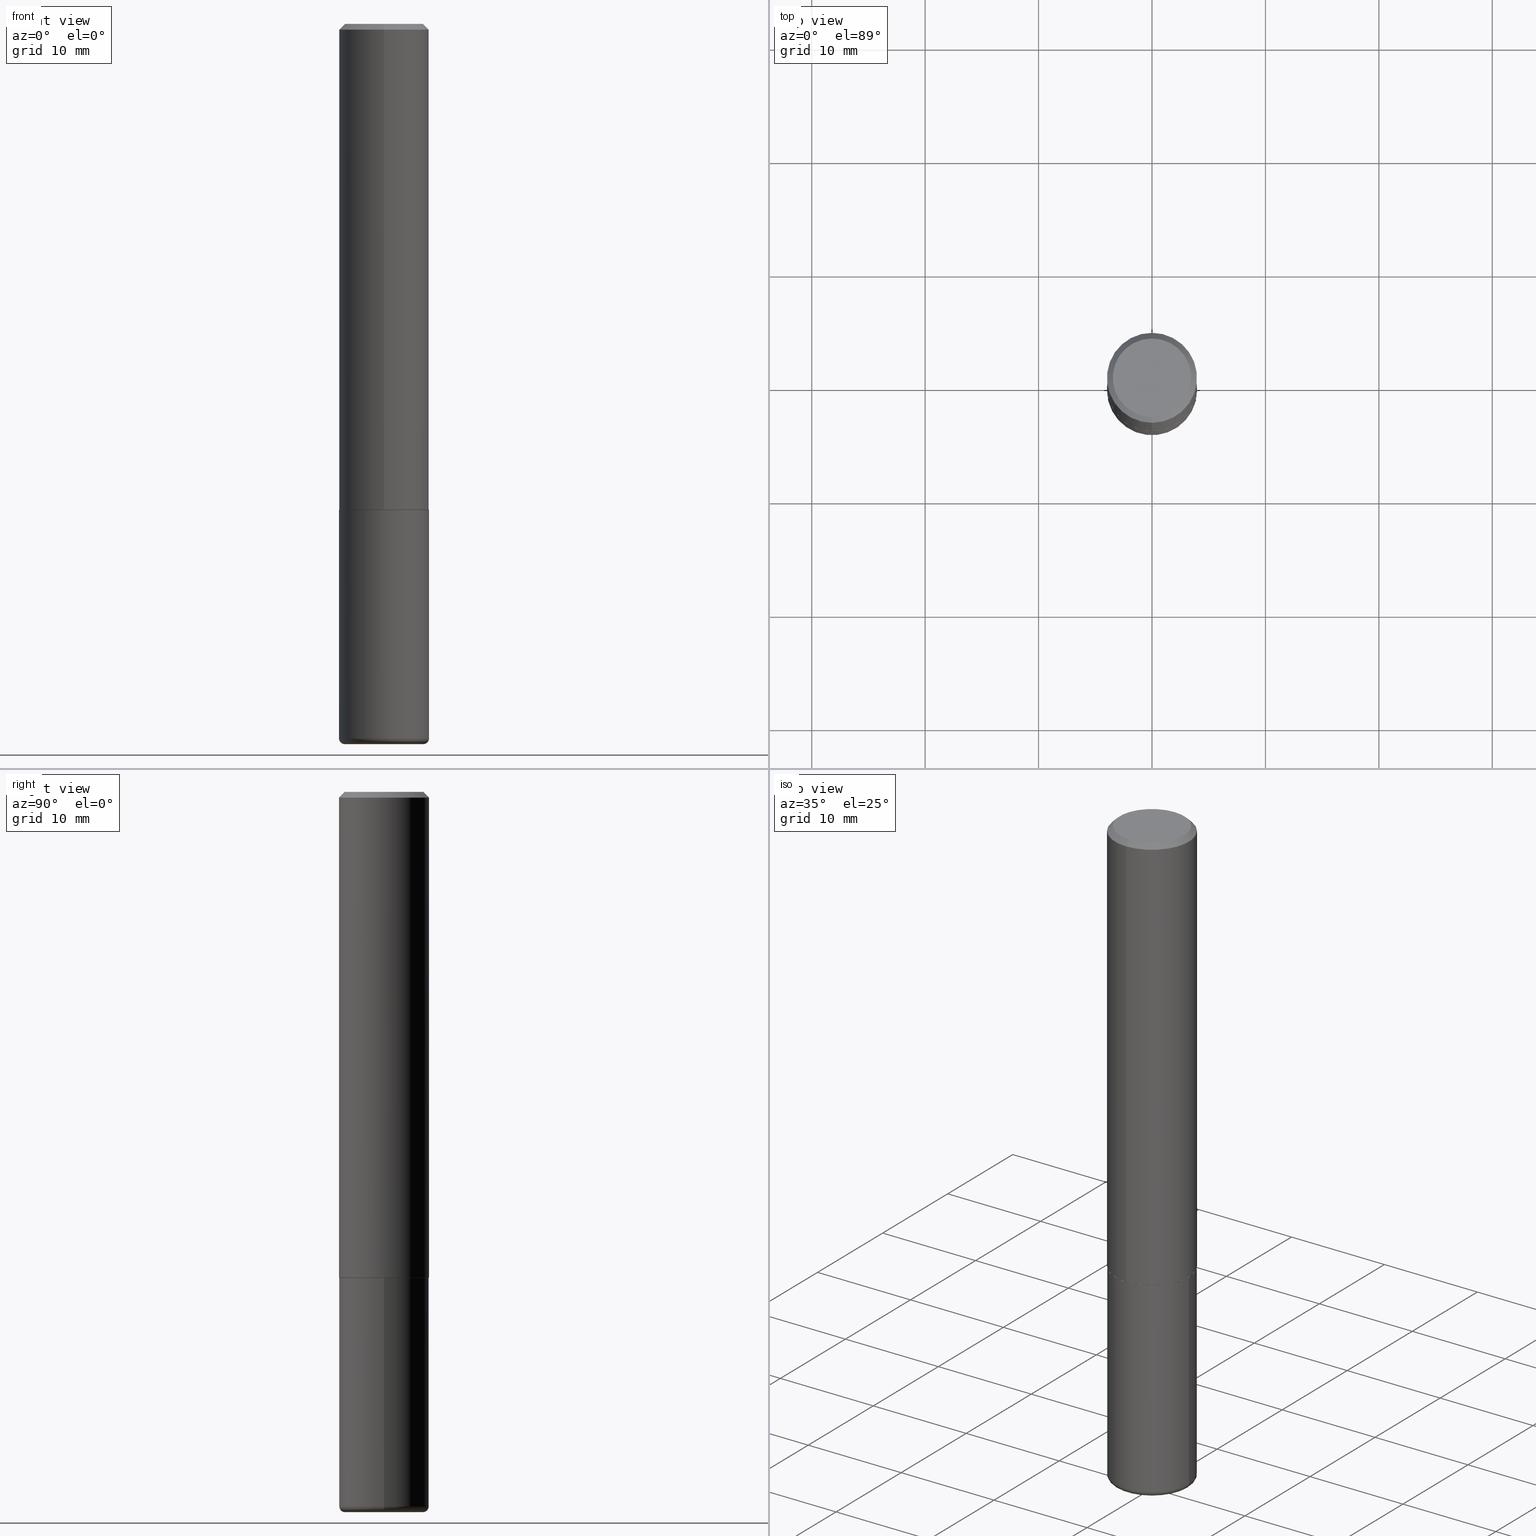
[diagram: canonical four-view strip — front | top / right | iso, engineering-drawing reading convention]
A machine part, canonical four-view strip (front | top / right | iso — engineering-drawing reading convention). The complete STEP part file that produces these views, byte-faithful:
ISO-10303-21;
HEADER;
FILE_DESCRIPTION (( 'STEP AP203' ),
    '1' );
FILE_NAME ('36855.STEP',
    '2024-03-01T18:15:22',
    ( '' ),
    ( '' ),
    'SwSTEP 2.0',
    'SolidWorks 2023',
    '' );
FILE_SCHEMA (( 'CONFIG_CONTROL_DESIGN' ));
ENDSEC;

DATA;
#1 = LINE ( 'NONE', #257, #294 ) ;
#2 = AXIS2_PLACEMENT_3D ( 'NONE', #21, #313, #345 ) ;
#3 = CARTESIAN_POINT ( 'NONE',  ( -1.091087918388479962E-15, -0.1562500000000001388, 5.454617528603499581E-16 ) ) ;
#4 = DESIGN_CONTEXT ( 'detailed design', #192, 'design' ) ;
#5 = DIRECTION ( 'NONE',  ( -2.445836194192456800E-29, 3.490955218306236261E-15, 1.000000000000000000 ) ) ;
#6 = CARTESIAN_POINT ( 'NONE',  ( 0.000000000000000000, 0.000000000000000000, 0.000000000000000000 ) ) ;
#7 = CONICAL_SURFACE ( 'NONE', #198, 0.1562500000000000278, 0.7853981633974469467 ) ;
#8 = AXIS2_PLACEMENT_3D ( 'NONE', #120, #58, #180 ) ;
#9 = PERSON_AND_ORGANIZATION ( #64, #411 ) ;
#10 = EDGE_CURVE ( 'NONE', #87, #81, #26, .T. ) ;
#11 = APPROVAL_STATUS ( 'not_yet_approved' ) ;
#12 = ORIENTED_EDGE ( 'NONE', *, *, #222, .T. ) ;
#13 = EDGE_CURVE ( 'NONE', #15, #310, #206, .T. ) ;
#14 = COORDINATED_UNIVERSAL_TIME_OFFSET ( 5, 0, .BEHIND. ) ;
#15 = VERTEX_POINT ( 'NONE', #154 ) ;
#16 = VECTOR ( 'NONE', #285, 39.37007874015748143 ) ;
#17 = COORDINATED_UNIVERSAL_TIME_OFFSET ( 5, 0, .BEHIND. ) ;
#18 = VERTEX_POINT ( 'NONE', #246 ) ;
#19 = PERSON_AND_ORGANIZATION ( #64, #411 ) ;
#20 = ORIENTED_EDGE ( 'NONE', *, *, #402, .T. ) ;
#21 = CARTESIAN_POINT ( 'NONE',  ( 6.113672015462842613E-29, -8.728703347107864943E-15, -2.500000000000000000 ) ) ;
#22 = ADVANCED_FACE ( 'NONE', ( #65 ), #7, .T. ) ;
#23 = ORIENTED_EDGE ( 'NONE', *, *, #276, .F. ) ;
#24 = LOCAL_TIME ( 13, 15, 22.00000000000000000, #86 ) ;
#25 = DIRECTION ( 'NONE',  ( 1.000000000000000000, -6.982962677686269077E-15, 0.000000000000000000 ) ) ;
#26 = LINE ( 'NONE', #278, #74 ) ;
#27 = CARTESIAN_POINT ( 'NONE',  ( 0.1562500000000000000, -6.981216937016868084E-15, -1.687000000000000277 ) ) ;
#28 = CYLINDRICAL_SURFACE ( 'NONE', #40, 0.1562500000000000000 ) ;
#29 = DIRECTION ( 'NONE',  ( -2.445836194192456800E-29, 3.490955218306235866E-15, 1.000000000000000000 ) ) ;
#30 = CARTESIAN_POINT ( 'NONE',  ( 4.891672388384922358E-31, -6.981910436612484108E-17, -0.02000000000000003511 ) ) ;
#31 = VECTOR ( 'NONE', #211, 39.37007874015748143 ) ;
#32 = DIRECTION ( 'NONE',  ( -6.982962677686265922E-15, -1.000000000000000000, 3.496765431890251792E-15 ) ) ;
#33 = PRODUCT_DEFINITION_FORMATION_WITH_SPECIFIED_SOURCE ( 'ANY', '', #353, .NOT_KNOWN. ) ;
#34 = CARTESIAN_POINT ( 'NONE',  ( -1.084104955710751547E-15, -0.1552500000000058833, -1.686999999999999833 ) ) ;
#35 = PERSON_AND_ORGANIZATION_ROLE ( 'design_owner' ) ;
#36 = PRODUCT_RELATED_PRODUCT_CATEGORY ( 'detail', '', ( #353 ) ) ;
#37 = DIRECTION ( 'NONE',  ( -6.982962677686267499E-15, -1.000000000000000000, 3.490955218306237444E-15 ) ) ;
#38 = PRODUCT_DEFINITION_SHAPE ( 'NONE', 'NONE',  #304 ) ;
#39 = APPLICATION_PROTOCOL_DEFINITION ( 'international standard', 'config_control_design', 1994, #192 ) ;
#40 = AXIS2_PLACEMENT_3D ( 'NONE', #119, #127, #251 ) ;
#41 = DIRECTION ( 'NONE',  ( 1.000000000000000000, -6.982962677686266711E-15, 4.876176775795936353E-29 ) ) ;
#42 = PERSON_AND_ORGANIZATION ( #64, #411 ) ;
#43 = ADVANCED_FACE ( 'NONE', ( #146 ), #95, .T. ) ;
#44 = PERSON_AND_ORGANIZATION ( #64, #411 ) ;
#45 = CIRCLE ( 'NONE', #259, 0.1362500000000000100 ) ;
#46 = APPROVAL_STATUS ( 'not_yet_approved' ) ;
#47 = CC_DESIGN_DATE_AND_TIME_ASSIGNMENT ( #189, #49, ( #304 ) ) ;
#48 = EDGE_LOOP ( 'NONE', ( #351, #332, #299, #308 ) ) ;
#49 = DATE_TIME_ROLE ( 'creation_date' ) ;
#50 = ORIENTED_EDGE ( 'NONE', *, *, #269, .T. ) ;
#51 = ORIENTED_EDGE ( 'NONE', *, *, #10, .F. ) ;
#52 = ORIENTED_EDGE ( 'NONE', *, *, #222, .F. ) ;
#53 = CARTESIAN_POINT ( 'NONE',  ( 1.091087918388479765E-15, 0.1562499999999999722, -0.02000000000000057981 ) ) ;
#54 = EDGE_LOOP ( 'NONE', ( #236, #109, #208, #51 ) ) ;
#55 = CARTESIAN_POINT ( 'NONE',  ( 4.125505876034326327E-29, -5.890129018628388122E-15, -1.687000000000000277 ) ) ;
#56 = DIRECTION ( 'NONE',  ( 7.105427357601001859E-15, 1.000000000000000000, -3.491481338843145583E-15 ) ) ;
#57 = AXIS2_PLACEMENT_3D ( 'NONE', #227, #105, #382 ) ;
#58 = DIRECTION ( 'NONE',  ( -2.445836194192456800E-29, 3.490955218306236261E-15, 1.000000000000000000 ) ) ;
#59 = VERTEX_POINT ( 'NONE', #282 ) ;
#60 = MANIFOLD_SOLID_BREP ( 'Body-Move/Copy2[2]', #284 ) ;
#61 = LINE ( 'NONE', #339, #16 ) ;
#62 = DIRECTION ( 'NONE',  ( -2.445836194192456800E-29, 3.490955218306236261E-15, 1.000000000000000000 ) ) ;
#63 = CARTESIAN_POINT ( 'NONE',  ( 0.1562500000000000000, -1.091087918388479174E-15, 7.619026212181150377E-30 ) ) ;
#64 = PERSON ( 'UNSPECIFIED', 'UNSPECIFIED', 'UNSPECIFIED', ('UNSPECIFIED'), ('UNSPECIFIED'), ('UNSPECIFIED') ) ;
#65 = FACE_OUTER_BOUND ( 'NONE', #297, .T. ) ;
#66 = EDGE_CURVE ( 'NONE', #267, #87, #156, .T. ) ;
#67 = APPROVAL_PERSON_ORGANIZATION ( #291, #254, #104 ) ;
#68 = DIRECTION ( 'NONE',  ( 0.000000000000000000, 0.000000000000000000, 1.000000000000000000 ) ) ;
#69 = EDGE_LOOP ( 'NONE', ( #52, #336 ) ) ;
#70 = DIRECTION ( 'NONE',  ( -4.851104656540957175E-15, -0.7071067811865490160, -0.7071067811865460184 ) ) ;
#71 = EDGE_CURVE ( 'NONE', #174, #59, #302, .T. ) ;
#72 = APPLICATION_PROTOCOL_DEFINITION ( 'international standard', 'config_control_design', 1994, #217 ) ;
#73 = FACE_OUTER_BOUND ( 'NONE', #232, .T. ) ;
#74 = VECTOR ( 'NONE', #186, 39.37007874015748143 ) ;
#75 = ADVANCED_FACE ( 'NONE', ( #188 ), #173, .T. ) ;
#76 = PERSON_AND_ORGANIZATION_ROLE ( 'creator' ) ;
#77 = EDGE_CURVE ( 'NONE', #183, #59, #358, .T. ) ;
#78 = PLANE ( 'NONE',  #191 ) ;
#79 = CONICAL_SURFACE ( 'NONE', #148, 0.1552499999999999991, 0.7853981633975165577 ) ;
#81 = VERTEX_POINT ( 'NONE', #413 ) ;
#80 = CC_DESIGN_APPROVAL ( #360, ( #33 ) ) ;
#82 = CARTESIAN_POINT ( 'NONE',  ( 0.1362500000000000100, -9.680132011942619886E-15, -2.500000000000000000 ) ) ;
#83 = ORIENTED_EDGE ( 'NONE', *, *, #418, .F. ) ;
#84 = ORIENTED_EDGE ( 'NONE', *, *, #402, .F. ) ;
#85 = ADVANCED_FACE ( 'NONE', ( #344 ), #28, .T. ) ;
#86 = COORDINATED_UNIVERSAL_TIME_OFFSET ( 5, 0, .BEHIND. ) ;
#87 = VERTEX_POINT ( 'NONE', #34 ) ;
#88 = AXIS2_PLACEMENT_3D ( 'NONE', #175, #29, #252 ) ;
#89 = CARTESIAN_POINT ( 'NONE',  ( 6.113672015462842613E-29, -8.728703347107864943E-15, -2.500000000000000000 ) ) ;
#90 = ORIENTED_EDGE ( 'NONE', *, *, #13, .F. ) ;
#91 = DIRECTION ( 'NONE',  ( 1.000000000000000000, -6.982962677686269077E-15, 0.000000000000000000 ) ) ;
#92 = DIRECTION ( 'NONE',  ( -2.445836194192456800E-29, 3.490955218306236261E-15, 1.000000000000000000 ) ) ;
#93 = DIRECTION ( 'NONE',  ( -2.445836194192456800E-29, 3.490955218306236261E-15, 1.000000000000000000 ) ) ;
#94 = EDGE_CURVE ( 'NONE', #87, #267, #103, .T. ) ;
#95 = PLANE ( 'NONE',  #350 ) ;
#96 = AXIS2_PLACEMENT_3D ( 'NONE', #405, #56, #98 ) ;
#97 = LINE ( 'NONE', #63, #320 ) ;
#98 = DIRECTION ( 'NONE',  ( -1.000000000000000000, 7.105427357601014480E-15, 0.000000000000000000 ) ) ;
#99 = CARTESIAN_POINT ( 'NONE',  ( 1.103117597267596553E-15, 0.1552499999999941427, -1.687000000000000943 ) ) ;
#100 = DIRECTION ( 'NONE',  ( -2.445836194192456800E-29, 3.490955218306236261E-15, 1.000000000000000000 ) ) ;
#101 = DIRECTION ( 'NONE',  ( -2.445468806185136597E-29, 3.491481338843145583E-15, 1.000000000000000000 ) ) ;
#102 = EDGE_CURVE ( 'NONE', #141, #174, #266, .T. ) ;
#103 = CIRCLE ( 'NONE', #155, 0.1552499999999999991 ) ;
#104 = APPROVAL_ROLE ( '' ) ;
#105 = DIRECTION ( 'NONE',  ( -2.445836194192456800E-29, 3.490955218306236261E-15, 1.000000000000000000 ) ) ;
#106 = AXIS2_PLACEMENT_3D ( 'NONE', #383, #101, #196 ) ;
#107 = CC_DESIGN_SECURITY_CLASSIFICATION ( #248, ( #33 ) ) ;
#108 = AXIS2_PLACEMENT_3D ( 'NONE', #212, #121, #152 ) ;
#109 = ORIENTED_EDGE ( 'NONE', *, *, #321, .T. ) ;
#110 = EDGE_CURVE ( 'NONE', #59, #174, #131, .T. ) ;
#111 = DIRECTION ( 'NONE',  ( 6.982962677686265922E-15, 1.000000000000000000, -3.490955218306235866E-15 ) ) ;
#112 = AXIS2_PLACEMENT_3D ( 'NONE', #149, #145, #126 ) ;
#113 = ORIENTED_EDGE ( 'NONE', *, *, #239, .F. ) ;
#114 = ORIENTED_EDGE ( 'NONE', *, *, #355, .F. ) ;
#115 = ORIENTED_EDGE ( 'NONE', *, *, #66, .F. ) ;
#116 = ORIENTED_EDGE ( 'NONE', *, *, #77, .T. ) ;
#117 = AXIS2_PLACEMENT_3D ( 'NONE', #157, #287, #124 ) ;
#118 = DIRECTION ( 'NONE',  ( -2.445468806185136597E-29, 3.491481338843145583E-15, 1.000000000000000000 ) ) ;
#119 = CARTESIAN_POINT ( 'NONE',  ( 0.000000000000000000, 0.000000000000000000, 0.000000000000000000 ) ) ;
#120 = CARTESIAN_POINT ( 'NONE',  ( 0.000000000000000000, 0.000000000000000000, 0.000000000000000000 ) ) ;
#121 = DIRECTION ( 'NONE',  ( -2.445468806185136597E-29, 3.491481338843145583E-15, 1.000000000000000000 ) ) ;
#122 = ADVANCED_FACE ( 'NONE', ( #416 ), #352, .T. ) ;
#123 = CARTESIAN_POINT ( 'NONE',  ( 1.110223024625178431E-15, 0.1562499999999943379, -1.686000000000000831 ) ) ;
#124 = DIRECTION ( 'NONE',  ( 1.000000000000000000, -6.982962677686262766E-15, 0.000000000000000000 ) ) ;
#125 = CIRCLE ( 'NONE', #57, 0.1562500000000000278 ) ;
#126 = DIRECTION ( 'NONE',  ( -6.982962677686265922E-15, -1.000000000000000000, 3.490955218306236655E-15 ) ) ;
#127 = DIRECTION ( 'NONE',  ( -2.445468806185136597E-29, 3.491481338843145583E-15, 1.000000000000000000 ) ) ;
#128 = FACE_OUTER_BOUND ( 'NONE', #271, .T. ) ;
#129 = DIRECTION ( 'NONE',  ( -2.445836194192457080E-29, 3.490955218306235866E-15, 1.000000000000000000 ) ) ;
#130 = DIRECTION ( 'NONE',  ( -2.445468806185136597E-29, 3.491481338843145583E-15, 1.000000000000000000 ) ) ;
#131 = CIRCLE ( 'NONE', #117, 0.1562500000000000000 ) ;
#132 = DIRECTION ( 'NONE',  ( -6.982962677686265922E-15, -1.000000000000000000, 3.496765431890251792E-15 ) ) ;
#133 = APPROVAL_DATE_TIME ( #255, #254 ) ;
#134 = CARTESIAN_POINT ( 'NONE',  ( 4.891672388384922358E-31, -6.981910436612484108E-17, -0.02000000000000003511 ) ) ;
#135 = LOCAL_TIME ( 13, 15, 22.00000000000000000, #17 ) ;
#136 = ORIENTED_EDGE ( 'NONE', *, *, #102, .F. ) ;
#137 = ADVANCED_FACE ( 'NONE', ( #253 ), #393, .T. ) ;
#138 = CALENDAR_DATE ( 2024, 1, 3 ) ;
#139 = ORIENTED_EDGE ( 'NONE', *, *, #184, .F. ) ;
#140 = AXIS2_PLACEMENT_3D ( 'NONE', #218, #275, #341 ) ;
#141 = VERTEX_POINT ( 'NONE', #301 ) ;
#142 = CC_DESIGN_PERSON_AND_ORGANIZATION_ASSIGNMENT ( #327, #76, ( #33 ) ) ;
#143 = ORIENTED_EDGE ( 'NONE', *, *, #234, .T. ) ;
#144 = VERTEX_POINT ( 'NONE', #261 ) ;
#145 = DIRECTION ( 'NONE',  ( -2.445836194192456800E-29, 3.490955218306236261E-15, 1.000000000000000000 ) ) ;
#146 = FACE_OUTER_BOUND ( 'NONE', #69, .T. ) ;
#147 = CC_DESIGN_DATE_AND_TIME_ASSIGNMENT ( #265, #171, ( #248 ) ) ;
#148 = AXIS2_PLACEMENT_3D ( 'NONE', #356, #162, #164 ) ;
#149 = CARTESIAN_POINT ( 'NONE',  ( 0.000000000000000000, 0.000000000000000000, 0.000000000000000000 ) ) ;
#150 = DIRECTION ( 'NONE',  ( -6.982962677686267499E-15, -1.000000000000000000, 3.490955218306237444E-15 ) ) ;
#151 = DIRECTION ( 'NONE',  ( 5.024295867788404755E-15, 0.7071067811865981989, 0.7071067811864968355 ) ) ;
#152 = DIRECTION ( 'NONE',  ( 1.000000000000000000, -6.982962677686262766E-15, 0.000000000000000000 ) ) ;
#153 = CARTESIAN_POINT ( 'NONE',  ( 1.106670310946397846E-15, 0.1552499999999941427, -1.687000000000000943 ) ) ;
#154 = CARTESIAN_POINT ( 'NONE',  ( -1.003347832174086870E-15, -0.1362500000000001765, 3.517841023581594269E-16 ) ) ;
#155 = AXIS2_PLACEMENT_3D ( 'NONE', #380, #410, #221 ) ;
#156 = CIRCLE ( 'NONE', #249, 0.1552499999999999991 ) ;
#157 = CARTESIAN_POINT ( 'NONE',  ( 6.064762639339139522E-29, -8.658873720331001644E-15, -2.480000000000000426 ) ) ;
#158 = APPROVAL_STATUS ( 'not_yet_approved' ) ;
#159 = CARTESIAN_POINT ( 'NONE',  ( 3.029377150996461054E-45, -4.323846379655227478E-31, -1.238585461360658504E-16 ) ) ;
#160 = CARTESIAN_POINT ( 'NONE',  ( 0.000000000000000000, 0.000000000000000000, 0.000000000000000000 ) ) ;
#161 = LOCAL_TIME ( 13, 15, 22.00000000000000000, #14 ) ;
#162 = DIRECTION ( 'NONE',  ( -2.445836194192456800E-29, 3.490955218306236261E-15, 1.000000000000000000 ) ) ;
#163 = CALENDAR_DATE ( 2024, 1, 3 ) ;
#164 = DIRECTION ( 'NONE',  ( -6.982962677686265922E-15, -1.000000000000000000, 3.519288880726909138E-15 ) ) ;
#165 = CIRCLE ( 'NONE', #368, 0.1562500000000000278 ) ;
#166 = ADVANCED_FACE ( 'NONE', ( #231 ), #78, .F. ) ;
#167 = CARTESIAN_POINT ( 'NONE',  ( 9.514286648347551409E-16, 0.1362500000000001765, -5.375719215622581901E-16 ) ) ;
#168 = EDGE_LOOP ( 'NONE', ( #136, #50, #116, #238 ) ) ;
#169 = ORIENTED_EDGE ( 'NONE', *, *, #110, .F. ) ;
#170 = CC_DESIGN_PERSON_AND_ORGANIZATION_ASSIGNMENT ( #42, #417, ( #304 ) ) ;
#171 = DATE_TIME_ROLE ( 'classification_date' ) ;
#172 = ORIENTED_EDGE ( 'NONE', *, *, #234, .F. ) ;
#173 = CONICAL_SURFACE ( 'NONE', #414, 0.1552499999999999991, 0.7853981633975165577 ) ;
#174 = VERTEX_POINT ( 'NONE', #364 ) ;
#175 = CARTESIAN_POINT ( 'NONE',  ( 4.126125659602675903E-29, -5.889241453282622158E-15, -1.687000000000000277 ) ) ;
#176 = ORIENTED_EDGE ( 'NONE', *, *, #13, .T. ) ;
#177 = DIRECTION ( 'NONE',  ( 1.000000000000000000, -6.982962677686273021E-15, 0.000000000000000000 ) ) ;
#178 = EDGE_LOOP ( 'NONE', ( #172, #400, #303, #139 ) ) ;
#179 = AXIS2_PLACEMENT_3D ( 'NONE', #343, #409, #240 ) ;
#180 = DIRECTION ( 'NONE',  ( -6.982962677686265922E-15, -1.000000000000000000, 3.490955218306236655E-15 ) ) ;
#181 = CARTESIAN_POINT ( 'NONE',  ( 3.029377150996461054E-45, -4.323846379655227478E-31, -1.238585461360658504E-16 ) ) ;
#182 = CYLINDRICAL_SURFACE ( 'NONE', #112, 0.1562500000000001388 ) ;
#183 = VERTEX_POINT ( 'NONE', #82 ) ;
#184 = EDGE_CURVE ( 'NONE', #235, #331, #363, .T. ) ;
#185 = DIRECTION ( 'NONE',  ( -2.445468806185136597E-29, 3.491481338843145583E-15, 1.000000000000000000 ) ) ;
#186 = DIRECTION ( 'NONE',  ( -4.937700262164884886E-15, -0.7071067811865933139, 0.7071067811865017205 ) ) ;
#187 = CC_DESIGN_APPROVAL ( #229, ( #248 ) ) ;
#188 = FACE_OUTER_BOUND ( 'NONE', #54, .T. ) ;
#189 = DATE_AND_TIME ( #293, #274 ) ;
#190 = EDGE_CURVE ( 'NONE', #18, #144, #165, .T. ) ;
#191 = AXIS2_PLACEMENT_3D ( 'NONE', #167, #200, #111 ) ;
#192 = APPLICATION_CONTEXT ( 'configuration controlled 3d designs of mechanical parts and assemblies' ) ;
#193 = DIRECTION ( 'NONE',  ( 1.000000000000000000, 0.000000000000000000, 0.000000000000000000 ) ) ;
#194 = EDGE_CURVE ( 'NONE', #59, #331, #97, .T. ) ;
#195 = LINE ( 'NONE', #3, #317 ) ;
#196 = DIRECTION ( 'NONE',  ( 1.000000000000000000, -6.982962677686267499E-15, 4.883557194083112901E-29 ) ) ;
#197 = APPROVAL_ROLE ( '' ) ;
#198 = AXIS2_PLACEMENT_3D ( 'NONE', #30, #243, #316 ) ;
#199 = AXIS2_PLACEMENT_3D ( 'NONE', #412, #93, #32 ) ;
#200 = DIRECTION ( 'NONE',  ( 2.445836194192456800E-29, -3.490955218306235866E-15, -1.000000000000000000 ) ) ;
#201 = ORIENTED_EDGE ( 'NONE', *, *, #10, .T. ) ;
#202 = DATE_AND_TIME ( #295, #24 ) ;
#203 = ORIENTED_EDGE ( 'NONE', *, *, #110, .T. ) ;
#204 = ORIENTED_EDGE ( 'NONE', *, *, #239, .T. ) ;
#205 = APPROVAL_ROLE ( '' ) ;
#206 = CIRCLE ( 'NONE', #258, 0.1362500000000001765 ) ;
#207 = AXIS2_PLACEMENT_3D ( 'NONE', #160, #130, #41 ) ;
#208 = ORIENTED_EDGE ( 'NONE', *, *, #340, .F. ) ;
#209 = FACE_OUTER_BOUND ( 'NONE', #48, .T. ) ;
#210 = ORIENTED_EDGE ( 'NONE', *, *, #77, .F. ) ;
#211 = DIRECTION ( 'NONE',  ( -2.445468806185136877E-29, 3.491481338843145188E-15, 1.000000000000000000 ) ) ;
#212 = CARTESIAN_POINT ( 'NONE',  ( 6.064762639339139522E-29, -8.658873720331001644E-15, -2.480000000000000426 ) ) ;
#213 = FACE_OUTER_BOUND ( 'NONE', #305, .T. ) ;
#214 = CARTESIAN_POINT ( 'NONE',  ( 6.113672015462842613E-29, -8.728703347107864943E-15, -2.500000000000000000 ) ) ;
#215 = CC_DESIGN_APPROVAL ( #254, ( #304 ) ) ;
#216 = DIRECTION ( 'NONE',  ( -2.445468806185136877E-29, 3.491481338843145188E-15, 1.000000000000000000 ) ) ;
#217 = APPLICATION_CONTEXT ( 'configuration controlled 3d designs of mechanical parts and assemblies' ) ;
#218 = CARTESIAN_POINT ( 'NONE',  ( 0.1362500000000000100, -9.610302385165756588E-15, -2.480000000000000426 ) ) ;
#219 = ADVANCED_FACE ( 'NONE', ( #242 ), #374, .F. ) ;
#220 = DIRECTION ( 'NONE',  ( 4.937700262164540942E-15, 0.7071067811865441310, -0.7071067811865509034 ) ) ;
#221 = DIRECTION ( 'NONE',  ( -6.982962677686265922E-15, -1.000000000000000000, 3.519288880726909138E-15 ) ) ;
#222 = EDGE_CURVE ( 'NONE', #183, #141, #376, .T. ) ;
#223 = FACE_OUTER_BOUND ( 'NONE', #270, .T. ) ;
#224 = VERTEX_POINT ( 'NONE', #123 ) ;
#225 = CIRCLE ( 'NONE', #233, 0.1562500000000002220 ) ;
#226 =( NAMED_UNIT ( * ) SI_UNIT ( $, .STERADIAN. ) SOLID_ANGLE_UNIT ( ) );
#227 = CARTESIAN_POINT ( 'NONE',  ( 4.891672388384922358E-31, -6.981910436612484108E-17, -0.02000000000000003511 ) ) ;
#228 = CIRCLE ( 'NONE', #357, 0.1362500000000001765 ) ;
#229 = APPROVAL ( #46, 'UNSPECIFIED' ) ;
#230 = PERSON_AND_ORGANIZATION ( #64, #411 ) ;
#231 = FACE_OUTER_BOUND ( 'NONE', #373, .T. ) ;
#232 = EDGE_LOOP ( 'NONE', ( #401, #314, #201, #23 ) ) ;
#233 = AXIS2_PLACEMENT_3D ( 'NONE', #279, #5, #132 ) ;
#234 = EDGE_CURVE ( 'NONE', #174, #235, #315, .T. ) ;
#235 = VERTEX_POINT ( 'NONE', #415 ) ;
#236 = ORIENTED_EDGE ( 'NONE', *, *, #94, .T. ) ;
#237 = ORIENTED_EDGE ( 'NONE', *, *, #190, .T. ) ;
#238 = ORIENTED_EDGE ( 'NONE', *, *, #71, .F. ) ;
#239 = EDGE_CURVE ( 'NONE', #310, #144, #250, .T. ) ;
#240 = DIRECTION ( 'NONE',  ( -1.000000000000000000, 6.982962677686265922E-15, -4.876176775795935793E-29 ) ) ;
#241 = ORIENTED_EDGE ( 'NONE', *, *, #418, .T. ) ;
#242 = FACE_OUTER_BOUND ( 'NONE', #262, .T. ) ;
#243 = DIRECTION ( 'NONE',  ( 2.445836194192456800E-29, -3.490955218306236261E-15, -1.000000000000000000 ) ) ;
#244 = CARTESIAN_POINT ( 'NONE',  ( -0.1562500000000000000, 1.110223024625156540E-15, -7.685836078523291160E-30 ) ) ;
#245 = ADVANCED_FACE ( 'NONE', ( #128 ), #307, .F. ) ;
#246 = CARTESIAN_POINT ( 'NONE',  ( -1.071952812151801412E-15, -0.1562500000000001110, -0.01999999999999948694 ) ) ;
#247 = AXIS2_PLACEMENT_3D ( 'NONE', #55, #309, #25 ) ;
#248 = SECURITY_CLASSIFICATION ( '', '', #330 ) ;
#249 = AXIS2_PLACEMENT_3D ( 'NONE', #349, #62, #408 ) ;
#250 = LINE ( 'NONE', #53, #283 ) ;
#251 = DIRECTION ( 'NONE',  ( 1.000000000000000000, -6.982962677686266711E-15, 4.876176775795936353E-29 ) ) ;
#252 = DIRECTION ( 'NONE',  ( -6.982962677686265922E-15, -1.000000000000000000, 3.490955218306235866E-15 ) ) ;
#253 = FACE_OUTER_BOUND ( 'NONE', #370, .T. ) ;
#254 = APPROVAL ( #158, 'UNSPECIFIED' ) ;
#255 = DATE_AND_TIME ( #163, #397 ) ;
#256 = CIRCLE ( 'NONE', #199, 0.1562500000000002220 ) ;
#257 = CARTESIAN_POINT ( 'NONE',  ( -1.071952812151801412E-15, -0.1562500000000001110, -0.01999999999999948694 ) ) ;
#258 = AXIS2_PLACEMENT_3D ( 'NONE', #181, #92, #150 ) ;
#259 = AXIS2_PLACEMENT_3D ( 'NONE', #89, #185, #177 ) ;
#260 = PERSON_AND_ORGANIZATION_ROLE ( 'design_supplier' ) ;
#261 = CARTESIAN_POINT ( 'NONE',  ( 1.091087918388479765E-15, 0.1562499999999999722, -0.02000000000000057981 ) ) ;
#262 = EDGE_LOOP ( 'NONE', ( #264, #398 ) ) ;
#263 = EDGE_CURVE ( 'NONE', #224, #144, #61, .T. ) ;
#264 = ORIENTED_EDGE ( 'NONE', *, *, #288, .T. ) ;
#265 = DATE_AND_TIME ( #399, #135 ) ;
#266 = CIRCLE ( 'NONE', #96, 0.01999999999999988939 ) ;
#267 = VERTEX_POINT ( 'NONE', #153 ) ;
#268 = SHAPE_DEFINITION_REPRESENTATION ( #38, #390 ) ;
#269 = EDGE_CURVE ( 'NONE', #141, #183, #45, .T. ) ;
#270 = EDGE_LOOP ( 'NONE', ( #84, #83, #204, #367 ) ) ;
#271 = EDGE_LOOP ( 'NONE', ( #338, #115 ) ) ;
#272 = LINE ( 'NONE', #99, #385 ) ;
#273 = CONICAL_SURFACE ( 'NONE', #326, 0.1562500000000000278, 0.7853981633974469467 ) ;
#275 = DIRECTION ( 'NONE',  ( -6.982962677686266711E-15, -1.000000000000000000, 3.491481338843145583E-15 ) ) ;
#274 = LOCAL_TIME ( 13, 15, 22.00000000000000000, #384 ) ;
#276 = EDGE_CURVE ( 'NONE', #224, #81, #256, .T. ) ;
#277 = DIRECTION ( 'NONE',  ( -2.445468806185136597E-29, 3.491481338843145583E-15, 1.000000000000000000 ) ) ;
#278 = CARTESIAN_POINT ( 'NONE',  ( -1.084104955710751547E-15, -0.1552500000000058833, -1.686999999999999833 ) ) ;
#279 = CARTESIAN_POINT ( 'NONE',  ( 4.123679823408482543E-29, -5.885750498064314951E-15, -1.686000000000000165 ) ) ;
#280 = DIRECTION ( 'NONE',  ( -1.000000000000000000, 6.982962677686265922E-15, -4.876176775795935793E-29 ) ) ;
#281 = DIRECTION ( 'NONE',  ( -6.982962677686266711E-15, -1.000000000000000000, 3.496765431890256131E-15 ) ) ;
#282 = CARTESIAN_POINT ( 'NONE',  ( 0.1562499999999999445, -9.749961638719480029E-15, -2.480000000000000426 ) ) ;
#283 = VECTOR ( 'NONE', #220, 39.37007874015748143 ) ;
#284 = CLOSED_SHELL ( 'NONE', ( #75, #292, #22, #347, #328, #406, #245, #166 ) ) ;
#285 = DIRECTION ( 'NONE',  ( -2.445836194192457080E-29, 3.490955218306235866E-15, 1.000000000000000000 ) ) ;
#286 = UNCERTAINTY_MEASURE_WITH_UNIT (LENGTH_MEASURE( 1.000000000000000082E-05 ), #386, 'distance_accuracy_value', 'NONE');
#287 = DIRECTION ( 'NONE',  ( -2.445468806185136597E-29, 3.491481338843145583E-15, 1.000000000000000000 ) ) ;
#288 = EDGE_CURVE ( 'NONE', #331, #235, #335, .T. ) ;
#289 = DIRECTION ( 'NONE',  ( -2.445836194192456800E-29, 3.490955218306236261E-15, 1.000000000000000000 ) ) ;
#290 =( GEOMETRIC_REPRESENTATION_CONTEXT ( 3 ) GLOBAL_UNCERTAINTY_ASSIGNED_CONTEXT ( ( #286 ) ) GLOBAL_UNIT_ASSIGNED_CONTEXT ( ( #386, #354, #226 ) ) REPRESENTATION_CONTEXT ( 'NONE', 'WORKASPACE' ) );
#291 = PERSON_AND_ORGANIZATION ( #64, #411 ) ;
#292 = ADVANCED_FACE ( 'NONE', ( #209 ), #182, .T. ) ;
#293 = CALENDAR_DATE ( 2024, 1, 3 ) ;
#294 = VECTOR ( 'NONE', #70, 39.37007874015748143 ) ;
#295 = CALENDAR_DATE ( 2024, 1, 3 ) ;
#296 = CC_DESIGN_PERSON_AND_ORGANIZATION_ASSIGNMENT ( #19, #260, ( #33 ) ) ;
#297 = EDGE_LOOP ( 'NONE', ( #90, #20, #237, #113 ) ) ;
#298 = PERSON_AND_ORGANIZATION_ROLE ( 'classification_officer' ) ;
#299 = ORIENTED_EDGE ( 'NONE', *, *, #190, .F. ) ;
#300 = TOROIDAL_SURFACE ( 'NONE', #403, 0.1362500000000000100, 0.01999999999999988939 ) ;
#301 = CARTESIAN_POINT ( 'NONE',  ( -0.1362500000000000100, -7.654619782670286835E-15, -2.500000000000000000 ) ) ;
#302 = CIRCLE ( 'NONE', #108, 0.1562500000000000000 ) ;
#303 = ORIENTED_EDGE ( 'NONE', *, *, #194, .T. ) ;
#304 = PRODUCT_DEFINITION ( 'UNKNOWN', '', #33, #4 ) ;
#305 = EDGE_LOOP ( 'NONE', ( #362, #365, #396, #114 ) ) ;
#306 = DIMENSIONAL_EXPONENTS ( 1.000000000000000000, 0.000000000000000000, 0.000000000000000000, 0.000000000000000000, 0.000000000000000000, 0.000000000000000000, 0.000000000000000000 ) ;
#307 = PLANE ( 'NONE',  #88 ) ;
#308 = ORIENTED_EDGE ( 'NONE', *, *, #381, .F. ) ;
#309 = DIRECTION ( 'NONE',  ( -2.445468806185136597E-29, 3.491481338843145583E-15, 1.000000000000000000 ) ) ;
#310 = VERTEX_POINT ( 'NONE', #337 ) ;
#311 = CARTESIAN_POINT ( 'NONE',  ( 4.891672388384922358E-31, -6.981910436612484108E-17, -0.02000000000000003511 ) ) ;
#312 = DIRECTION ( 'NONE',  ( 2.438088387897960049E-29, -3.491481338843145188E-15, -1.000000000000000000 ) ) ;
#313 = DIRECTION ( 'NONE',  ( -2.445468806185136597E-29, 3.491481338843145583E-15, 1.000000000000000000 ) ) ;
#314 = ORIENTED_EDGE ( 'NONE', *, *, #66, .T. ) ;
#315 = LINE ( 'NONE', #244, #31 ) ;
#316 = DIRECTION ( 'NONE',  ( 6.982962677686266711E-15, 1.000000000000000000, -3.496765431890256131E-15 ) ) ;
#317 = VECTOR ( 'NONE', #129, 39.37007874015748143 ) ;
#318 = ADVANCED_FACE ( 'NONE', ( #407 ), #300, .T. ) ;
#319 = DIRECTION ( 'NONE',  ( 2.445836194192456800E-29, -3.490955218306236261E-15, -1.000000000000000000 ) ) ;
#320 = VECTOR ( 'NONE', #216, 39.37007874015748143 ) ;
#321 = EDGE_CURVE ( 'NONE', #267, #224, #272, .T. ) ;
#322 = COORDINATED_UNIVERSAL_TIME_OFFSET ( 5, 0, .BEHIND. ) ;
#323 = MECHANICAL_CONTEXT ( 'NONE', #217, 'mechanical' ) ;
#324 = CC_DESIGN_PERSON_AND_ORGANIZATION_ASSIGNMENT ( #44, #35, ( #353 ) ) ;
#325 = CLOSED_SHELL ( 'NONE', ( #137, #318, #219, #85, #122, #43 ) ) ;
#326 = AXIS2_PLACEMENT_3D ( 'NONE', #134, #319, #388 ) ;
#327 = PERSON_AND_ORGANIZATION ( #64, #411 ) ;
#328 = ADVANCED_FACE ( 'NONE', ( #213 ), #348, .T. ) ;
#329 = EDGE_LOOP ( 'NONE', ( #12, #395, #169, #210 ) ) ;
#330 = SECURITY_CLASSIFICATION_LEVEL ( 'unclassified' ) ;
#331 = VERTEX_POINT ( 'NONE', #27 ) ;
#332 = ORIENTED_EDGE ( 'NONE', *, *, #263, .T. ) ;
#333 = MANIFOLD_SOLID_BREP ( 'Body-Move/Copy2[1]', #325 ) ;
#334 = APPROVAL_DATE_TIME ( #392, #229 ) ;
#335 = CIRCLE ( 'NONE', #247, 0.1562500000000000000 ) ;
#336 = ORIENTED_EDGE ( 'NONE', *, *, #269, .F. ) ;
#337 = CARTESIAN_POINT ( 'NONE',  ( 1.021258291611617453E-15, 0.1362500000000001765, -5.995011946302911277E-16 ) ) ;
#338 = ORIENTED_EDGE ( 'NONE', *, *, #94, .F. ) ;
#339 = CARTESIAN_POINT ( 'NONE',  ( 1.110223024625157329E-15, 0.1562500000000001388, -5.454617528603499581E-16 ) ) ;
#340 = EDGE_CURVE ( 'NONE', #81, #224, #225, .T. ) ;
#341 = DIRECTION ( 'NONE',  ( 1.000000000000000000, -6.982962677686274599E-15, 0.000000000000000000 ) ) ;
#342 = AXIS2_PLACEMENT_3D ( 'NONE', #6, #68, #193 ) ;
#343 = CARTESIAN_POINT ( 'NONE',  ( 4.125505876034326327E-29, -5.890129018628388122E-15, -1.687000000000000277 ) ) ;
#344 = FACE_OUTER_BOUND ( 'NONE', #178, .T. ) ;
#345 = DIRECTION ( 'NONE',  ( 1.000000000000000000, -6.982962677686273021E-15, 0.000000000000000000 ) ) ;
#346 = ORIENTED_EDGE ( 'NONE', *, *, #194, .F. ) ;
#347 = ADVANCED_FACE ( 'NONE', ( #223 ), #273, .T. ) ;
#348 = CYLINDRICAL_SURFACE ( 'NONE', #8, 0.1562500000000001388 ) ;
#349 = CARTESIAN_POINT ( 'NONE',  ( 4.126125659602675903E-29, -5.889241453282622158E-15, -1.687000000000000277 ) ) ;
#350 = AXIS2_PLACEMENT_3D ( 'NONE', #214, #312, #280 ) ;
#351 = ORIENTED_EDGE ( 'NONE', *, *, #340, .T. ) ;
#352 = TOROIDAL_SURFACE ( 'NONE', #106, 0.1362500000000000100, 0.01999999999999988939 ) ;
#353 = PRODUCT ( '36855', '36855', '', ( #323 ) ) ;
#354 =( NAMED_UNIT ( * ) PLANE_ANGLE_UNIT ( ) SI_UNIT ( $, .RADIAN. ) );
#355 = EDGE_CURVE ( 'NONE', #144, #18, #125, .T. ) ;
#356 = CARTESIAN_POINT ( 'NONE',  ( 4.126125659602675903E-29, -5.889241453282622158E-15, -1.687000000000000277 ) ) ;
#357 = AXIS2_PLACEMENT_3D ( 'NONE', #159, #289, #37 ) ;
#358 = CIRCLE ( 'NONE', #140, 0.01999999999999988939 ) ;
#359 = LENGTH_MEASURE_WITH_UNIT ( LENGTH_MEASURE( 0.02539999999999999897 ), #387 );
#360 = APPROVAL ( #11, 'UNSPECIFIED' ) ;
#361 = APPROVAL_DATE_TIME ( #202, #360 ) ;
#362 = ORIENTED_EDGE ( 'NONE', *, *, #263, .F. ) ;
#363 = CIRCLE ( 'NONE', #389, 0.1562500000000000000 ) ;
#364 = CARTESIAN_POINT ( 'NONE',  ( -0.1562499999999999445, -7.548650695705845104E-15, -2.480000000000000426 ) ) ;
#365 = ORIENTED_EDGE ( 'NONE', *, *, #276, .T. ) ;
#366 = ORIENTED_EDGE ( 'NONE', *, *, #288, .F. ) ;
#367 = ORIENTED_EDGE ( 'NONE', *, *, #355, .T. ) ;
#368 = AXIS2_PLACEMENT_3D ( 'NONE', #311, #377, #281 ) ;
#369 = APPROVAL_PERSON_ORGANIZATION ( #9, #360, #205 ) ;
#370 = EDGE_LOOP ( 'NONE', ( #203, #143, #366, #346 ) ) ;
#371 = CC_DESIGN_PERSON_AND_ORGANIZATION_ASSIGNMENT ( #230, #298, ( #248 ) ) ;
#372 = CARTESIAN_POINT ( 'NONE',  ( 4.125505876034326327E-29, -5.890129018628388122E-15, -1.687000000000000277 ) ) ;
#373 = EDGE_LOOP ( 'NONE', ( #241, #176 ) ) ;
#374 = PLANE ( 'NONE',  #179 ) ;
#375 = CARTESIAN_POINT ( 'NONE',  ( 4.126125659602675903E-29, -5.889241453282622158E-15, -1.687000000000000277 ) ) ;
#376 = CIRCLE ( 'NONE', #2, 0.1362500000000000100 ) ;
#377 = DIRECTION ( 'NONE',  ( -2.445836194192456800E-29, 3.490955218306236261E-15, 1.000000000000000000 ) ) ;
#378 = DIRECTION ( 'NONE',  ( -6.982962677686265922E-15, -1.000000000000000000, 3.519288880726909138E-15 ) ) ;
#379 = DIRECTION ( 'NONE',  ( 1.000000000000000000, -6.982962677686267499E-15, 4.883557194083112901E-29 ) ) ;
#380 = CARTESIAN_POINT ( 'NONE',  ( 4.126125659602675903E-29, -5.889241453282622158E-15, -1.687000000000000277 ) ) ;
#381 = EDGE_CURVE ( 'NONE', #81, #18, #195, .T. ) ;
#382 = DIRECTION ( 'NONE',  ( -6.982962677686266711E-15, -1.000000000000000000, 3.496765431890256131E-15 ) ) ;
#383 = CARTESIAN_POINT ( 'NONE',  ( 6.064762639339139522E-29, -8.658873720331001644E-15, -2.480000000000000426 ) ) ;
#384 = COORDINATED_UNIVERSAL_TIME_OFFSET ( 5, 0, .BEHIND. ) ;
#385 = VECTOR ( 'NONE', #151, 39.37007874015748143 ) ;
#386 =( CONVERSION_BASED_UNIT ( 'INCH', #359 ) LENGTH_UNIT ( ) NAMED_UNIT ( #306 ) );
#387 =( LENGTH_UNIT ( ) NAMED_UNIT ( * ) SI_UNIT ( $, .METRE. ) );
#388 = DIRECTION ( 'NONE',  ( 6.982962677686266711E-15, 1.000000000000000000, -3.496765431890256131E-15 ) ) ;
#389 = AXIS2_PLACEMENT_3D ( 'NONE', #372, #277, #91 ) ;
#390 = ADVANCED_BREP_SHAPE_REPRESENTATION ( '36855', ( #333, #60, #342 ), #290 ) ;
#391 = APPROVAL_PERSON_ORGANIZATION ( #394, #229, #197 ) ;
#392 = DATE_AND_TIME ( #138, #161 ) ;
#393 = CYLINDRICAL_SURFACE ( 'NONE', #207, 0.1562500000000000000 ) ;
#394 = PERSON_AND_ORGANIZATION ( #64, #411 ) ;
#395 = ORIENTED_EDGE ( 'NONE', *, *, #102, .T. ) ;
#396 = ORIENTED_EDGE ( 'NONE', *, *, #381, .T. ) ;
#397 = LOCAL_TIME ( 13, 15, 22.00000000000000000, #322 ) ;
#398 = ORIENTED_EDGE ( 'NONE', *, *, #184, .T. ) ;
#399 = CALENDAR_DATE ( 2024, 1, 3 ) ;
#400 = ORIENTED_EDGE ( 'NONE', *, *, #71, .T. ) ;
#401 = ORIENTED_EDGE ( 'NONE', *, *, #321, .F. ) ;
#402 = EDGE_CURVE ( 'NONE', #15, #18, #1, .T. ) ;
#403 = AXIS2_PLACEMENT_3D ( 'NONE', #404, #118, #379 ) ;
#404 = CARTESIAN_POINT ( 'NONE',  ( 6.064762639339139522E-29, -8.658873720331001644E-15, -2.480000000000000426 ) ) ;
#405 = CARTESIAN_POINT ( 'NONE',  ( -0.1362500000000000100, -7.690759242857866845E-15, -2.480000000000000426 ) ) ;
#406 = ADVANCED_FACE ( 'NONE', ( #73 ), #79, .T. ) ;
#407 = FACE_OUTER_BOUND ( 'NONE', #329, .T. ) ;
#408 = DIRECTION ( 'NONE',  ( -6.982962677686265922E-15, -1.000000000000000000, 3.519288880726909138E-15 ) ) ;
#409 = DIRECTION ( 'NONE',  ( 2.438088387897960049E-29, -3.491481338843145188E-15, -1.000000000000000000 ) ) ;
#410 = DIRECTION ( 'NONE',  ( -2.445836194192456800E-29, 3.490955218306236261E-15, 1.000000000000000000 ) ) ;
#411 = ORGANIZATION ( 'UNSPECIFIED', 'UNSPECIFIED', '' ) ;
#412 = CARTESIAN_POINT ( 'NONE',  ( 4.123679823408482543E-29, -5.885750498064314951E-15, -1.686000000000000165 ) ) ;
#413 = CARTESIAN_POINT ( 'NONE',  ( -1.091087918388439336E-15, -0.1562500000000060785, -1.685999999999999721 ) ) ;
#414 = AXIS2_PLACEMENT_3D ( 'NONE', #375, #100, #378 ) ;
#415 = CARTESIAN_POINT ( 'NONE',  ( -0.1562500000000000000, -6.164278344854539131E-15, -1.687000000000000277 ) ) ;
#416 = FACE_OUTER_BOUND ( 'NONE', #168, .T. ) ;
#417 = PERSON_AND_ORGANIZATION_ROLE ( 'creator' ) ;
#418 = EDGE_CURVE ( 'NONE', #310, #15, #228, .T. ) ;
ENDSEC;
END-ISO-10303-21;
